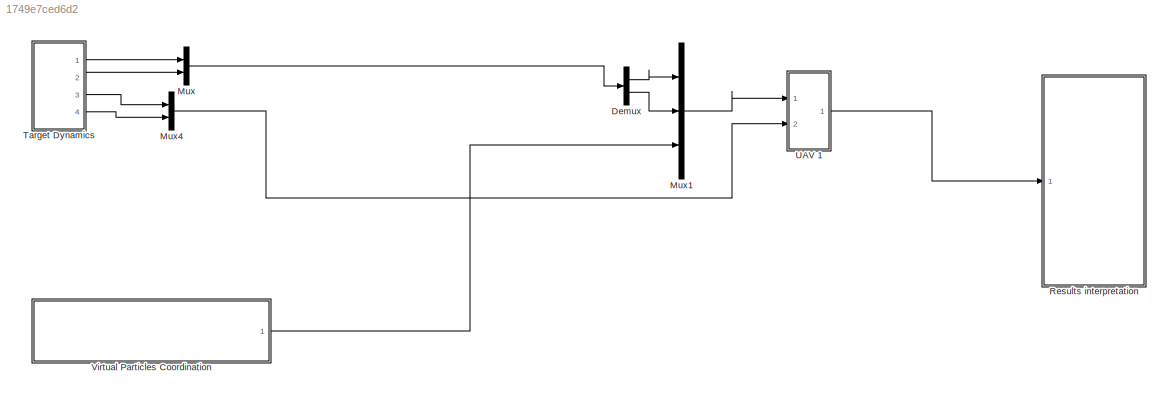
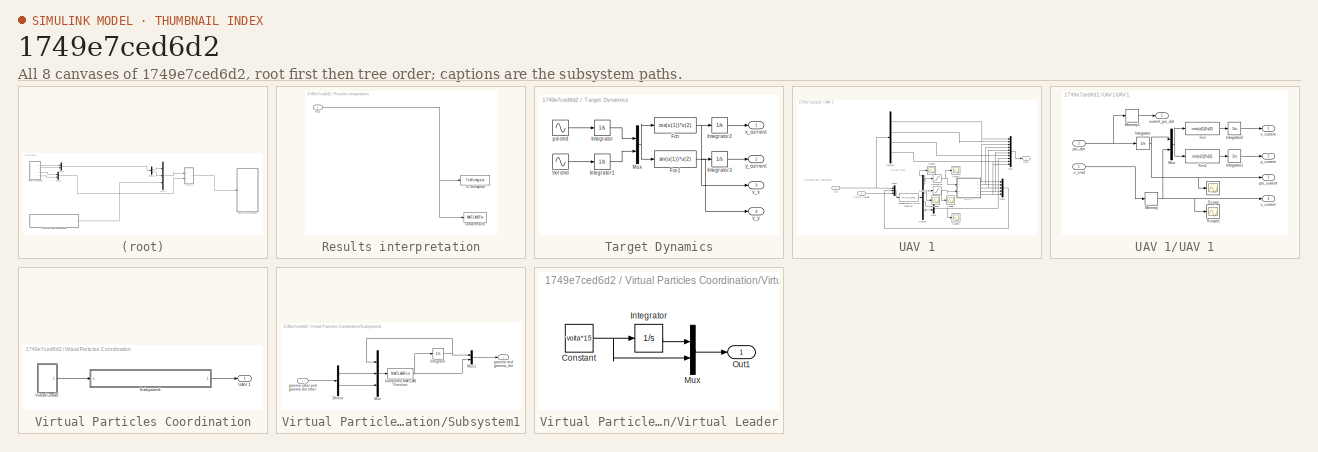
[diagram: thumbnail index - all 8 canvases of the model, root first then tree order]
MODEL slx_1749e7ced6d2
KIND model
CONFIG AbsTol = auto
CONFIG EnableMultiTasking = off
CONFIG FixedStep = auto
CONFIG MaxStep = auto
CONFIG MinStep = auto
CONFIG RelTol = 1e-3
CONFIG SampleTimeConstraint = Unconstrained
CONFIG SolverName = VariableStepAuto
CONFIG StartTime = 0.0
CONFIG StopTime = Ttotal
BLOCK [Demux] Demux
  Outputs = 2
  Ports = [1, 2]
BLOCK [Mux] Mux
  DisplayOption = bar
  Inputs = 2
  Ports = [2, 1]
BLOCK [Mux] Mux1
  DisplayOption = bar
  Inputs = 3
  Ports = [3, 1]
BLOCK [Mux] Mux4
  DisplayOption = bar
  Inputs = 2
  Ports = [2, 1]
BLOCK [SubSystem] Results interpretation
  Ports = [1]
  RequestExecContextInheritance = off
BLOCK [MATLABFcn] Results interpretation/Draws Results
  MATLABFcn = single_draw_results
  OutputDimensions = 0
  Ports = [1]
BLOCK [Inport] Results interpretation/In1
BLOCK [ToWorkspace] Results interpretation/To Workspace
  FixptAsFi = on
  MaxDataPoints = inf
  Ports = [1]
  SampleTime = -1
  VariableName = simulation_data
BLOCK [SubSystem] Target Dynamics
  Ports = [0, 4]
  RequestExecContextInheritance = off
BLOCK [Fcn] Target Dynamics/Fcn
  Expr = cos(u(1))*u(2)
BLOCK [Fcn] Target Dynamics/Fcn1
  Expr = sin(u(1))*u(2)
BLOCK [Integrator] Target Dynamics/Integrator
  Ports = [1, 1]
BLOCK [Integrator] Target Dynamics/Integrator1
  Ports = [1, 1]
BLOCK [Integrator] Target Dynamics/Integrator2
  Ports = [1, 1]
BLOCK [Integrator] Target Dynamics/Integrator3
  Ports = [1, 1]
BLOCK [Mux] Target Dynamics/Mux
  DisplayOption = bar
  Inputs = 2
  Ports = [2, 1]
BLOCK [Sin] Target Dynamics/Vel cmd
  Amplitude = target_velocity_amplitude
  Bias = target_velocity_bias
  Frequency = target_velocity_frequency
  Ports = [0, 1]
BLOCK [Sin] Target Dynamics/psi cmd
  Amplitude = target_psi_dot_amplitude
  Frequency = target_psi_dot_frequency
  Phase = pi/2
  Ports = [0, 1]
BLOCK [Outport] Target Dynamics/v_x
  Port = 3
  VectorParamsAs1DForOutWhenUnconnected = off
BLOCK [Outport] Target Dynamics/v_y
  Port = 4
  VectorParamsAs1DForOutWhenUnconnected = off
BLOCK [Outport] Target Dynamics/x_current
  VectorParamsAs1DForOutWhenUnconnected = off
BLOCK [Outport] Target Dynamics/y_current
  Port = 2
  VectorParamsAs1DForOutWhenUnconnected = off
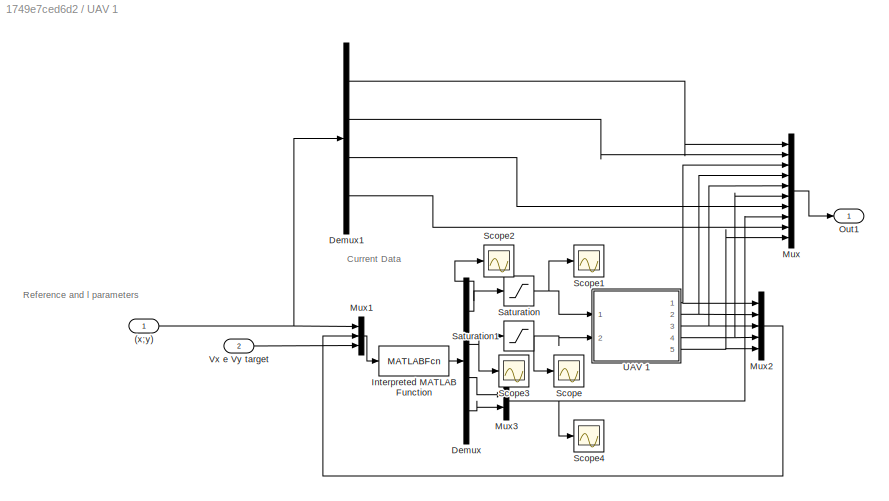
BLOCK [SubSystem] UAV 1
  Ports = [2, 1]
  RequestExecContextInheritance = off
BLOCK [Inport] UAV 1/(x;y)
BLOCK [Demux] UAV 1/Demux
  Ports = [1, 4]
BLOCK [Demux] UAV 1/Demux1
  Ports = [1, 4]
BLOCK [MATLABFcn] UAV 1/Interpreted MATLAB Function
  MATLABFcn = vehicle_controller
  OutputDimensions = 4
  Ports = [1, 1]
BLOCK [Mux] UAV 1/Mux
  DisplayOption = bar
  Inputs = 10
  Ports = [10, 1]
BLOCK [Mux] UAV 1/Mux1
  DisplayOption = bar
  Inputs = 3
  Ports = [3, 1]
BLOCK [Mux] UAV 1/Mux2
  DisplayOption = bar
  Inputs = 5
  Ports = [5, 1]
BLOCK [Mux] UAV 1/Mux3
  DisplayOption = bar
  Inputs = 2
  Ports = [2, 1]
BLOCK [Outport] UAV 1/Out1
BLOCK [Saturate] UAV 1/Saturation
  LowerLimit = min_vel
  UpperLimit = max_vel
BLOCK [Saturate] UAV 1/Saturation1
  LowerLimit = min_psi
  UpperLimit = max_psi
BLOCK [Scope] UAV 1/Scope
  Floating = off
  NumInputPorts = 1
  Ports = [1]
  ScopeSpecificationString = Simulink.scopes.TimeScopeBlockCfg('CurrentConfiguration', extmgr.ConfigurationSet(extmgr.Configuration('Core','General UI',true),extmgr.Configuration('Core','Source UI',true),extmgr.Configuration('Sources','WiredSimulink',true,'DataLoggingVariableName','ScopeData1'),extmgr.Configuration('Visuals','Time Domain',true,'SerializedDisplays',{struct('MinYLimReal','-0.98175','MaxYLimReal','0.98175','YLab...<+1444ch>
BLOCK [Scope] UAV 1/Scope1
  Floating = off
  NumInputPorts = 1
  Ports = [1]
  ScopeSpecificationString = Simulink.scopes.TimeScopeBlockCfg('CurrentConfiguration', extmgr.ConfigurationSet(extmgr.Configuration('Core','General UI',true),extmgr.Configuration('Core','Source UI',true),extmgr.Configuration('Sources','WiredSimulink',true,'DataLoggingVariableName','ScopeData2'),extmgr.Configuration('Visuals','Time Domain',true,'SerializedDisplays',{struct('MinYLimReal','3.26751','MaxYLimReal','21.85917','YLab...<+1445ch>
BLOCK [Scope] UAV 1/Scope2
  Floating = off
  NumInputPorts = 1
  Ports = [1]
  ScopeSpecificationString = Simulink.scopes.TimeScopeBlockCfg('CurrentConfiguration', extmgr.ConfigurationSet(extmgr.Configuration('Core','General UI',true),extmgr.Configuration('Core','Source UI',true),extmgr.Configuration('Sources','WiredSimulink',true,'DataLoggingVariableName','ScopeData3'),extmgr.Configuration('Visuals','Time Domain',true,'SerializedDisplays',{struct('MinYLimReal','-1110.31126','MaxYLimReal','11700.68405...<+1466ch>
BLOCK [Scope] UAV 1/Scope3
  Floating = off
  NumInputPorts = 1
  Ports = [1]
  ScopeSpecificationString = Simulink.scopes.TimeScopeBlockCfg('CurrentConfiguration', extmgr.ConfigurationSet(extmgr.Configuration('Core','General UI',true),extmgr.Configuration('Core','Source UI',true),extmgr.Configuration('Sources','WiredSimulink',true,'DataLoggingVariableName','ScopeData4'),extmgr.Configuration('Visuals','Time Domain',true,'SerializedDisplays',{struct('MinYLimReal','-773.72314','MaxYLimReal','5643.68737',...<+1458ch>
BLOCK [Scope] UAV 1/Scope4
  Floating = off
  NumInputPorts = 1
  Ports = [1]
  ScopeSpecificationString = Simulink.scopes.TimeScopeBlockCfg('CurrentConfiguration', extmgr.ConfigurationSet(extmgr.Configuration('Core','General UI',true),extmgr.Configuration('Core','Source UI',true),extmgr.Configuration('Sources','WiredSimulink',true,'DataLoggingVariableName','ScopeData5'),extmgr.Configuration('Visuals','Time Domain',true,'SerializedDisplays',{struct('MinYLimReal','-594.94205','MaxYLimReal','81.80284','Y...<+1460ch>
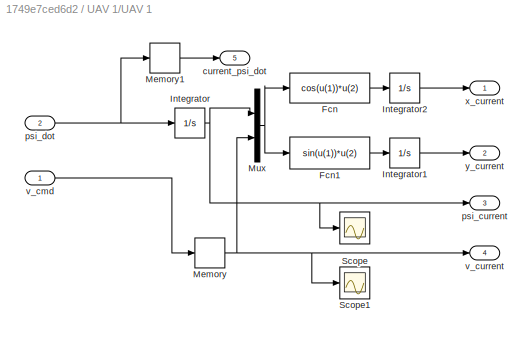
BLOCK [SubSystem] UAV 1/UAV 1
  Ports = [2, 5]
  RequestExecContextInheritance = off
BLOCK [Fcn] UAV 1/UAV 1/Fcn
  Expr = cos(u(1))*u(2)
BLOCK [Fcn] UAV 1/UAV 1/Fcn1
  Expr = sin(u(1))*u(2)
BLOCK [Integrator] UAV 1/UAV 1/Integrator
  Ports = [1, 1]
BLOCK [Integrator] UAV 1/UAV 1/Integrator1
  Ports = [1, 1]
BLOCK [Integrator] UAV 1/UAV 1/Integrator2
  Ports = [1, 1]
BLOCK [Memory] UAV 1/UAV 1/Memory
  InheritSampleTime = on
  InitialCondition = drone1_v0
BLOCK [Memory] UAV 1/UAV 1/Memory1
BLOCK [Mux] UAV 1/UAV 1/Mux
  DisplayOption = bar
  Inputs = 2
  Ports = [2, 1]
BLOCK [Scope] UAV 1/UAV 1/Scope
  Floating = off
  NumInputPorts = 1
  Ports = [1]
  ScopeSpecificationString = Simulink.scopes.TimeScopeBlockCfg('CurrentConfiguration', extmgr.ConfigurationSet(extmgr.Configuration('Core','General UI',true),extmgr.Configuration('Core','Source UI',true),extmgr.Configuration('Sources','WiredSimulink',true),extmgr.Configuration('Visuals','Time Domain',true,'SerializedDisplays',{struct('MinYLimReal','-1.15856','MaxYLimReal','1.67135','YLabelReal','','MinYLimMag','0.00000','MaxY...<+1383ch>
BLOCK [Scope] UAV 1/UAV 1/Scope1
  Floating = off
  NumInputPorts = 1
  Ports = [1]
  ScopeSpecificationString = Simulink.scopes.TimeScopeBlockCfg('CurrentConfiguration', extmgr.ConfigurationSet(extmgr.Configuration('Core','General UI',true),extmgr.Configuration('Core','Source UI',true),extmgr.Configuration('Sources','WiredSimulink',true,'DataLoggingVariableName','ScopeData3'),extmgr.Configuration('Visuals','Time Domain',true,'SerializedDisplays',{struct('MinYLimReal','3.125','MaxYLimReal','21.875','YLabelRe...<+1424ch>
BLOCK [Outport] UAV 1/UAV 1/current_psi_dot
  Port = 5
BLOCK [Outport] UAV 1/UAV 1/psi_current
  Port = 3
  VectorParamsAs1DForOutWhenUnconnected = off
BLOCK [Inport] UAV 1/UAV 1/psi_dot
  Port = 2
BLOCK [Inport] UAV 1/UAV 1/v_cmd
BLOCK [Outport] UAV 1/UAV 1/v_current
  Port = 4
  VectorParamsAs1DForOutWhenUnconnected = off
BLOCK [Outport] UAV 1/UAV 1/x_current
  VectorParamsAs1DForOutWhenUnconnected = off
BLOCK [Outport] UAV 1/UAV 1/y_current
  Port = 2
  VectorParamsAs1DForOutWhenUnconnected = off
BLOCK [Inport] UAV 1/Vx e Vy target
  Port = 2
BLOCK [SubSystem] Virtual Particles Coordination
  Ports = [0, 1]
  RequestExecContextInheritance = off
BLOCK [SubSystem] Virtual Particles Coordination/Subsystem1
  Ports = [1, 1]
  RequestExecContextInheritance = off
BLOCK [Demux] Virtual Particles Coordination/Subsystem1/Demux
  Outputs = 2
  Ports = [1, 2]
BLOCK [Integrator] Virtual Particles Coordination/Subsystem1/Integrator
  Ports = [1, 1]
BLOCK [MATLABFcn] Virtual Particles Coordination/Subsystem1/Interpreted MATLAB Function
  MATLABFcn = coordination_controller
  OutputDimensions = 1
  Ports = [1, 1]
BLOCK [Mux] Virtual Particles Coordination/Subsystem1/Mux
  DisplayOption = bar
  Inputs = 3
  Ports = [3, 1]
BLOCK [Mux] Virtual Particles Coordination/Subsystem1/Mux1
  DisplayOption = bar
  Inputs = 2
  Ports = [2, 1]
BLOCK [Outport] Virtual Particles Coordination/Subsystem1/gamma and gamma_dot
BLOCK [Inport] Virtual Particles Coordination/Subsystem1/gamma other and gamma dot other
BLOCK [Outport] Virtual Particles Coordination/UAV 1
BLOCK [SubSystem] Virtual Particles Coordination/Virtual Leader
  Ports = [0, 1]
  RequestExecContextInheritance = off
BLOCK [Constant] Virtual Particles Coordination/Virtual Leader/Constant
  Value = volta*15
BLOCK [Integrator] Virtual Particles Coordination/Virtual Leader/Integrator
  Ports = [1, 1]
BLOCK [Mux] Virtual Particles Coordination/Virtual Leader/Mux
  DisplayOption = bar
  Inputs = 2
  Ports = [2, 1]
BLOCK [Outport] Virtual Particles Coordination/Virtual Leader/Out1
ANNOTATION UAV 1: Current Data
ANNOTATION UAV 1: Reference and l parameters
LINE Demux:1 -> Mux1:1
LINE Demux:2 -> Mux1:2
LINE Mux1:1 -> UAV 1:1
LINE Mux4:1 -> UAV 1:2
LINE Mux:1 -> Demux:1
NET Results interpretation/In1:1 -> Results interpretation/Draws Results:1, Results interpretation/To Workspace:1
NET Target Dynamics/Fcn1:1 -> Target Dynamics/Integrator3:1, Target Dynamics/v_y:1
NET Target Dynamics/Fcn:1 -> Target Dynamics/Integrator2:1, Target Dynamics/v_x:1
LINE Target Dynamics/Integrator1:1 -> Target Dynamics/Mux:2
LINE Target Dynamics/Integrator2:1 -> Target Dynamics/x_current:1
LINE Target Dynamics/Integrator3:1 -> Target Dynamics/y_current:1
LINE Target Dynamics/Integrator:1 -> Target Dynamics/Mux:1
NET Target Dynamics/Mux:1 -> Target Dynamics/Fcn1:1, Target Dynamics/Fcn:1
LINE Target Dynamics/Vel cmd:1 -> Target Dynamics/Integrator1:1
LINE Target Dynamics/psi cmd:1 -> Target Dynamics/Integrator:1
LINE Target Dynamics:1 -> Mux:1
LINE Target Dynamics:2 -> Mux:2
LINE Target Dynamics:3 -> Mux4:1
LINE Target Dynamics:4 -> Mux4:2
NET UAV 1/(x;y):1 -> UAV 1/Demux1:1, UAV 1/Mux1:1
LINE UAV 1/Demux1:1 -> UAV 1/Mux:1
LINE UAV 1/Demux1:2 -> UAV 1/Mux:2
LINE UAV 1/Demux1:3 -> UAV 1/Mux:7
LINE UAV 1/Demux1:4 -> UAV 1/Mux:9
NET UAV 1/Demux:1 -> UAV 1/Saturation:1, UAV 1/Scope2:1
NET UAV 1/Demux:2 -> UAV 1/Saturation1:1, UAV 1/Scope3:1
LINE UAV 1/Demux:3 -> UAV 1/Mux3:1
LINE UAV 1/Demux:4 -> UAV 1/Mux3:2
LINE UAV 1/Interpreted MATLAB Function:1 -> UAV 1/Demux:1
LINE UAV 1/Mux1:1 -> UAV 1/Interpreted MATLAB Function:1
LINE UAV 1/Mux2:1 -> UAV 1/Mux1:2
NET UAV 1/Mux3:1 -> UAV 1/Mux:8, UAV 1/Scope4:1
LINE UAV 1/Mux:1 -> UAV 1/Out1:1
NET UAV 1/Saturation1:1 -> UAV 1/Scope:1, UAV 1/UAV 1:2
NET UAV 1/Saturation:1 -> UAV 1/Scope1:1, UAV 1/UAV 1:1
LINE UAV 1/UAV 1/Fcn1:1 -> UAV 1/UAV 1/Integrator1:1
LINE UAV 1/UAV 1/Fcn:1 -> UAV 1/UAV 1/Integrator2:1
LINE UAV 1/UAV 1/Integrator1:1 -> UAV 1/UAV 1/y_current:1
LINE UAV 1/UAV 1/Integrator2:1 -> UAV 1/UAV 1/x_current:1
NET UAV 1/UAV 1/Integrator:1 -> UAV 1/UAV 1/Mux:1, UAV 1/UAV 1/Scope:1, UAV 1/UAV 1/psi_current:1
LINE UAV 1/UAV 1/Memory1:1 -> UAV 1/UAV 1/current_psi_dot:1
NET UAV 1/UAV 1/Memory:1 -> UAV 1/UAV 1/Mux:2, UAV 1/UAV 1/Scope1:1, UAV 1/UAV 1/v_current:1
NET UAV 1/UAV 1/Mux:1 -> UAV 1/UAV 1/Fcn1:1, UAV 1/UAV 1/Fcn:1
NET UAV 1/UAV 1/psi_dot:1 -> UAV 1/UAV 1/Integrator:1, UAV 1/UAV 1/Memory1:1
LINE UAV 1/UAV 1/v_cmd:1 -> UAV 1/UAV 1/Memory:1
NET UAV 1/UAV 1:1 -> UAV 1/Mux2:1, UAV 1/Mux:3
NET UAV 1/UAV 1:2 -> UAV 1/Mux2:2, UAV 1/Mux:4
NET UAV 1/UAV 1:3 -> UAV 1/Mux2:3, UAV 1/Mux:5
NET UAV 1/UAV 1:4 -> UAV 1/Mux2:4, UAV 1/Mux:6
NET UAV 1/UAV 1:5 -> UAV 1/Mux2:5, UAV 1/Mux:10
LINE UAV 1/Vx e Vy target:1 -> UAV 1/Mux1:3
LINE UAV 1:1 -> Results interpretation:1
LINE Virtual Particles Coordination/Subsystem1/Demux:1 -> Virtual Particles Coordination/Subsystem1/Mux:2
LINE Virtual Particles Coordination/Subsystem1/Demux:2 -> Virtual Particles Coordination/Subsystem1/Mux:3
NET Virtual Particles Coordination/Subsystem1/Integrator:1 -> Virtual Particles Coordination/Subsystem1/Mux1:1, Virtual Particles Coordination/Subsystem1/Mux:1
NET Virtual Particles Coordination/Subsystem1/Interpreted MATLAB Function:1 -> Virtual Particles Coordination/Subsystem1/Integrator:1, Virtual Particles Coordination/Subsystem1/Mux1:2
LINE Virtual Particles Coordination/Subsystem1/Mux1:1 -> Virtual Particles Coordination/Subsystem1/gamma and gamma_dot:1
LINE Virtual Particles Coordination/Subsystem1/Mux:1 -> Virtual Particles Coordination/Subsystem1/Interpreted MATLAB Function:1
LINE Virtual Particles Coordination/Subsystem1/gamma other and gamma dot other:1 -> Virtual Particles Coordination/Subsystem1/Demux:1
LINE Virtual Particles Coordination/Subsystem1:1 -> Virtual Particles Coordination/UAV 1:1
NET Virtual Particles Coordination/Virtual Leader/Constant:1 -> Virtual Particles Coordination/Virtual Leader/Integrator:1, Virtual Particles Coordination/Virtual Leader/Mux:2
LINE Virtual Particles Coordination/Virtual Leader/Integrator:1 -> Virtual Particles Coordination/Virtual Leader/Mux:1
LINE Virtual Particles Coordination/Virtual Leader/Mux:1 -> Virtual Particles Coordination/Virtual Leader/Out1:1
LINE Virtual Particles Coordination/Virtual Leader:1 -> Virtual Particles Coordination/Subsystem1:1
LINE Virtual Particles Coordination:1 -> Mux1:3
note: NET lines group one-source signal fan-out (src -> all destinations, sorted); 1:1 wires keep LINE
